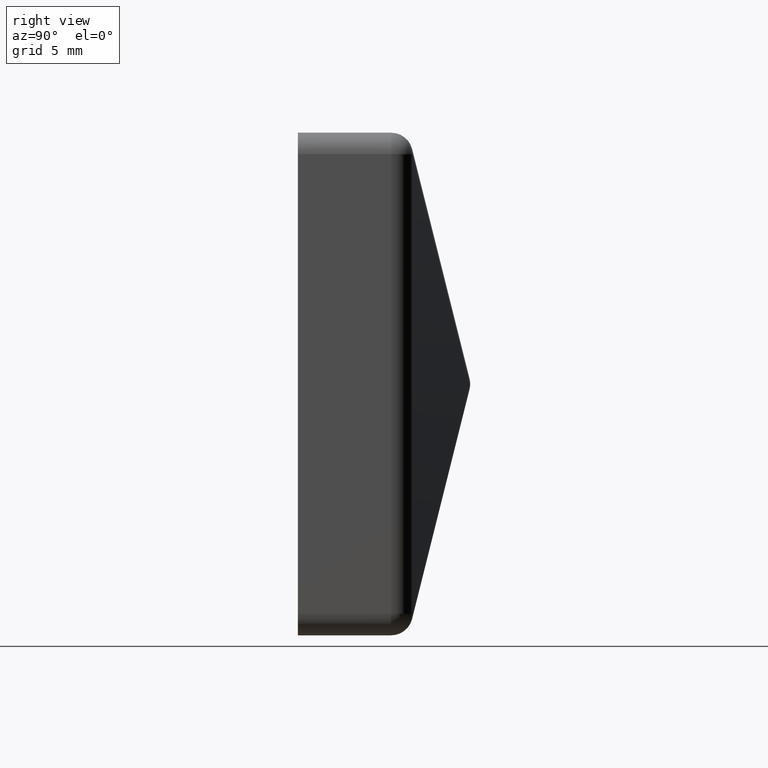
[diagram: clean part render]
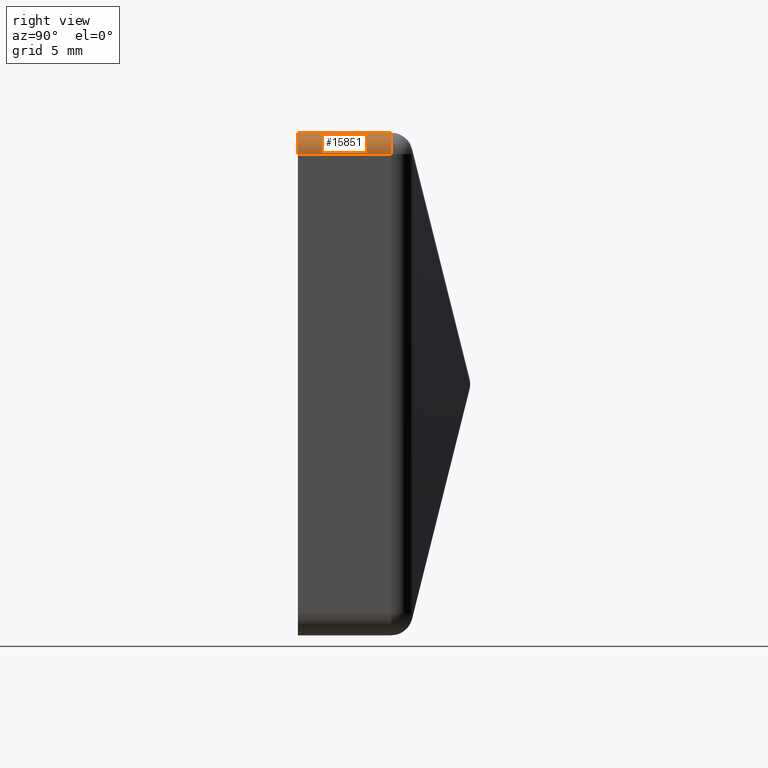
[diagram: same view with one face highlighted and labeled with its STEP entity id]
A machine part, right view. The second image highlights one B-rep face of the part: STEP entity #15851.
In plain terms, the highlighted cylindrical surface (edge-blend (fillet) strip) has radius 1.5 mm, axis along (0, -1, 0).
Its self-contained STEP definition (entity closure, byte-faithful):
#181 = EDGE_CURVE ( 'NONE', #13067, #3664, #4141, .T. ) ;
#810 = FACE_OUTER_BOUND ( 'NONE', #3376, .T. ) ;
#1354 = AXIS2_PLACEMENT_3D ( 'NONE', #11574, #11622, #5396 ) ;
#1986 = CARTESIAN_POINT ( 'NONE',  ( 17.49999999999996100, 6.500000000000000000, 15.99999999999998600 ) ) ;
#2690 = EDGE_CURVE ( 'NONE', #13067, #4873, #16342, .T. ) ;
#2977 = CARTESIAN_POINT ( 'NONE',  ( 15.99999999999995900, 6.500000000000000900, 15.99999999999998600 ) ) ;
#2990 = ORIENTED_EDGE ( 'NONE', *, *, #13155, .F. ) ;
#3056 = VECTOR ( 'NONE', #5855, 1000.000000000000000 ) ;
#3153 = DIRECTION ( 'NONE',  ( 0.0000000000000000000, 0.0000000000000000000, 1.000000000000000000 ) ) ;
#3376 = EDGE_LOOP ( 'NONE', ( #8345, #16081, #2990, #7563 ) ) ;
#3637 = LINE ( 'NONE', #4704, #3056 ) ;
#3664 = VERTEX_POINT ( 'NONE', #14350 ) ;
#4109 = CARTESIAN_POINT ( 'NONE',  ( 17.49999999999996100, 0.0000000000000000000, 15.99999999999998600 ) ) ;
#4141 = CIRCLE ( 'NONE', #6334, 1.499999999999999600 ) ;
#4704 = CARTESIAN_POINT ( 'NONE',  ( 15.99999999999995900, 12.00000000000000000, 17.49999999999998900 ) ) ;
#4873 = VERTEX_POINT ( 'NONE', #4109 ) ;
#5396 = DIRECTION ( 'NONE',  ( 0.0000000000000000000, 0.0000000000000000000, -1.000000000000000000 ) ) ;
#5629 = DIRECTION ( 'NONE',  ( -0.0000000000000000000, -1.000000000000000000, -0.0000000000000000000 ) ) ;
#5855 = DIRECTION ( 'NONE',  ( -0.0000000000000000000, 1.000000000000000000, -0.0000000000000000000 ) ) ;
#6334 = AXIS2_PLACEMENT_3D ( 'NONE', #2977, #9369, #14464 ) ;
#7563 = ORIENTED_EDGE ( 'NONE', *, *, #12534, .F. ) ;
#8291 = CARTESIAN_POINT ( 'NONE',  ( 15.99999999999995900, 0.0000000000000000000, 15.99999999999998600 ) ) ;
#8345 = ORIENTED_EDGE ( 'NONE', *, *, #2690, .F. ) ;
#8873 = CIRCLE ( 'NONE', #16327, 1.500000000000001300 ) ;
#9369 = DIRECTION ( 'NONE',  ( 0.0000000000000000000, -1.000000000000000000, 0.0000000000000000000 ) ) ;
#9439 = CYLINDRICAL_SURFACE ( 'NONE', #1354, 1.499999999999999600 ) ;
#11442 = DIRECTION ( 'NONE',  ( 0.0000000000000000000, -1.000000000000000000, 0.0000000000000000000 ) ) ;
#11574 = CARTESIAN_POINT ( 'NONE',  ( 15.99999999999995900, 12.00000000000000000, 15.99999999999998600 ) ) ;
#11622 = DIRECTION ( 'NONE',  ( 0.0000000000000000000, -1.000000000000000000, 0.0000000000000000000 ) ) ;
#12501 = VERTEX_POINT ( 'NONE', #13029 ) ;
#12534 = EDGE_CURVE ( 'NONE', #4873, #12501, #8873, .T. ) ;
#12676 = CARTESIAN_POINT ( 'NONE',  ( 17.49999999999996100, 12.00000000000000000, 15.99999999999998600 ) ) ;
#13029 = CARTESIAN_POINT ( 'NONE',  ( 15.99999999999995900, 0.0000000000000000000, 17.49999999999998900 ) ) ;
#13067 = VERTEX_POINT ( 'NONE', #1986 ) ;
#13155 = EDGE_CURVE ( 'NONE', #12501, #3664, #3637, .T. ) ;
#14350 = CARTESIAN_POINT ( 'NONE',  ( 15.99999999999995900, 6.500000000000000000, 17.49999999999995700 ) ) ;
#14464 = DIRECTION ( 'NONE',  ( 0.0000000000000000000, 0.0000000000000000000, -1.000000000000000000 ) ) ;
#14771 = VECTOR ( 'NONE', #11442, 1000.000000000000000 ) ;
#15851 = ADVANCED_FACE ( 'NONE', ( #810 ), #9439, .T. ) ;
#16081 = ORIENTED_EDGE ( 'NONE', *, *, #181, .T. ) ;
#16327 = AXIS2_PLACEMENT_3D ( 'NONE', #8291, #5629, #3153 ) ;
#16342 = LINE ( 'NONE', #12676, #14771 ) ;